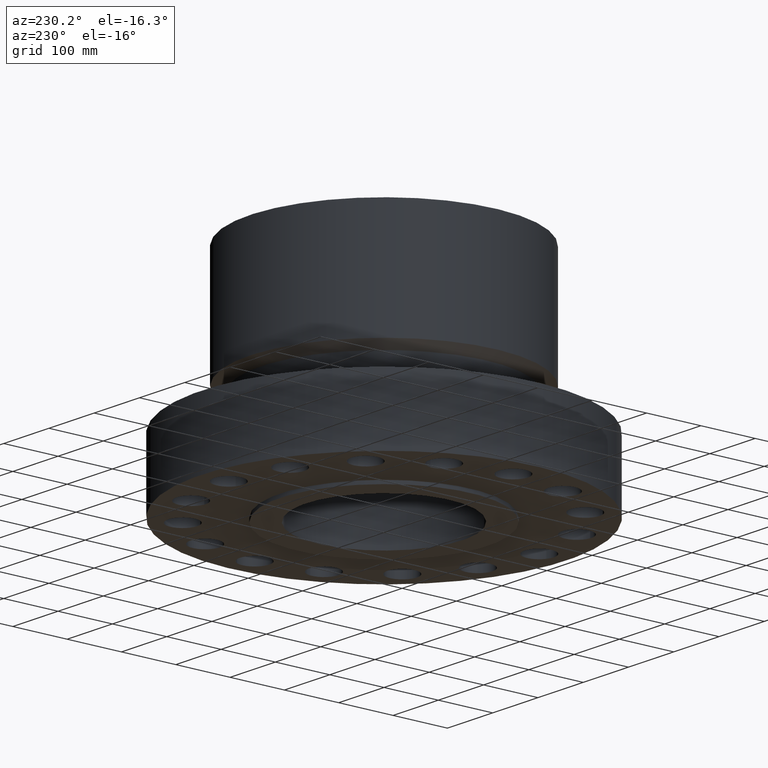
[diagram: clean part render]
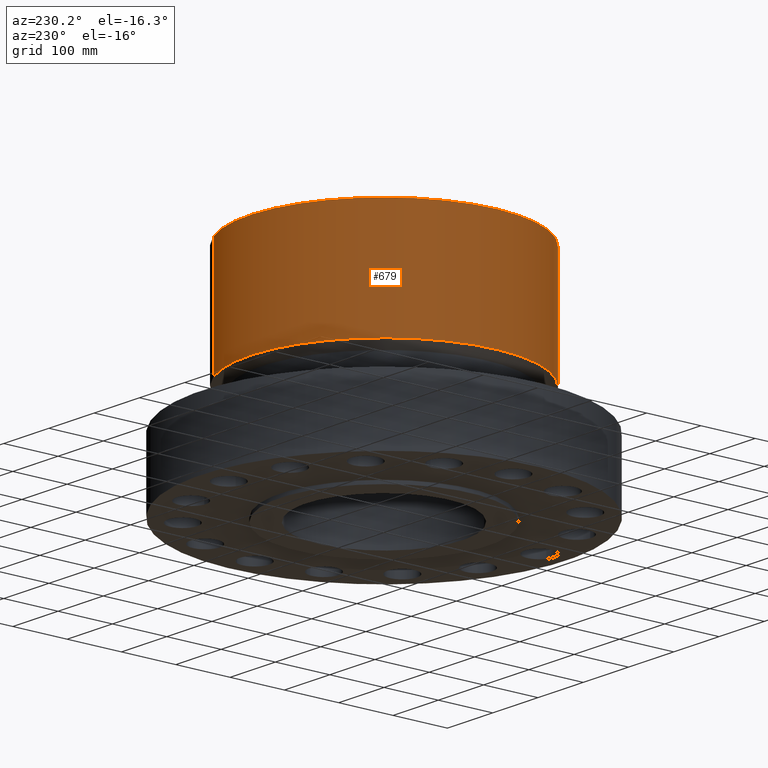
[diagram: same view with one face highlighted and labeled with its STEP entity id]
A machine part, auxiliary view. The second image highlights one B-rep face of the part: STEP entity #679.
In plain terms, the highlighted cylindrical surface (partial cylindrical patch) has radius 246.126 mm, axis along (0, 0, -1).
Its self-contained STEP definition (entity closure, byte-faithful):
#627=AXIS2_PLACEMENT_3D('Circle Axis2P3D',#625,#626,$) ;
#640=AXIS2_PLACEMENT_3D('Cylinder Axis2P3D',#637,#638,#639) ;
#670=AXIS2_PLACEMENT_3D('Circle Axis2P3D',#668,#669,$) ;
#603=CARTESIAN_POINT('Vertex',(4.64563346909,8.50377502475,7.60054046942)) ;
#610=CARTESIAN_POINT('Vertex',(-4.64563346909,-8.50377502475,7.60054046942)) ;
#625=CARTESIAN_POINT('Axis2P3D Location',(0.,0.,7.60054046942)) ;
#637=CARTESIAN_POINT('Axis2P3D Location',(0.,0.,7.75000000003)) ;
#642=CARTESIAN_POINT('Line Origine',(4.64563346909,8.50377502475,11.6752702347)) ;
#646=CARTESIAN_POINT('Vertex',(4.64563346909,8.50377502475,15.7500000001)) ;
#653=CARTESIAN_POINT('Vertex',(-4.64563346909,-8.50377502475,15.7500000001)) ;
#656=CARTESIAN_POINT('Line Origine',(-4.64563346909,-8.50377502475,11.6752702347)) ;
#668=CARTESIAN_POINT('Axis2P3D Location',(0.,0.,15.7500000001)) ;
#626=DIRECTION('Axis2P3D Direction',(-0.,0.,0.0393700787402)) ;
#638=DIRECTION('Axis2P3D Direction',(0.,0.,-0.0393700787402)) ;
#639=DIRECTION('Axis2P3D XDirection',(-0.0188750212049,-0.0345504945626,0.)) ;
#643=DIRECTION('Vector Direction',(0.,0.,-0.0393700787402)) ;
#657=DIRECTION('Vector Direction',(0.,0.,-0.0393700787402)) ;
#669=DIRECTION('Axis2P3D Direction',(0.,0.,-0.0393700787402)) ;
#644=VECTOR('Line Direction',#643,0.0393700787402) ;
#658=VECTOR('Line Direction',#657,0.0393700787402) ;
#674=ORIENTED_EDGE('',*,*,#629,.F.) ;
#675=ORIENTED_EDGE('',*,*,#660,.T.) ;
#676=ORIENTED_EDGE('',*,*,#672,.T.) ;
#677=ORIENTED_EDGE('',*,*,#648,.F.) ;
#679=ADVANCED_FACE('PartBody',(#678),#641,.T.) ;
#628=CIRCLE('generated circle',#627,9.69000000004) ;
#671=CIRCLE('generated circle',#670,9.69000000004) ;
#641=CYLINDRICAL_SURFACE('generated cylinder',#640,9.69000000004) ;
#629=EDGE_CURVE('',#611,#604,#628,.F.) ;
#648=EDGE_CURVE('',#604,#647,#645,.F.) ;
#660=EDGE_CURVE('',#611,#654,#659,.F.) ;
#672=EDGE_CURVE('',#654,#647,#671,.T.) ;
#673=EDGE_LOOP('',(#674,#675,#676,#677)) ;
#678=FACE_OUTER_BOUND('',#673,.T.) ;
#645=LINE('Line',#642,#644) ;
#659=LINE('Line',#656,#658) ;
#604=VERTEX_POINT('',#603) ;
#611=VERTEX_POINT('',#610) ;
#647=VERTEX_POINT('',#646) ;
#654=VERTEX_POINT('',#653) ;